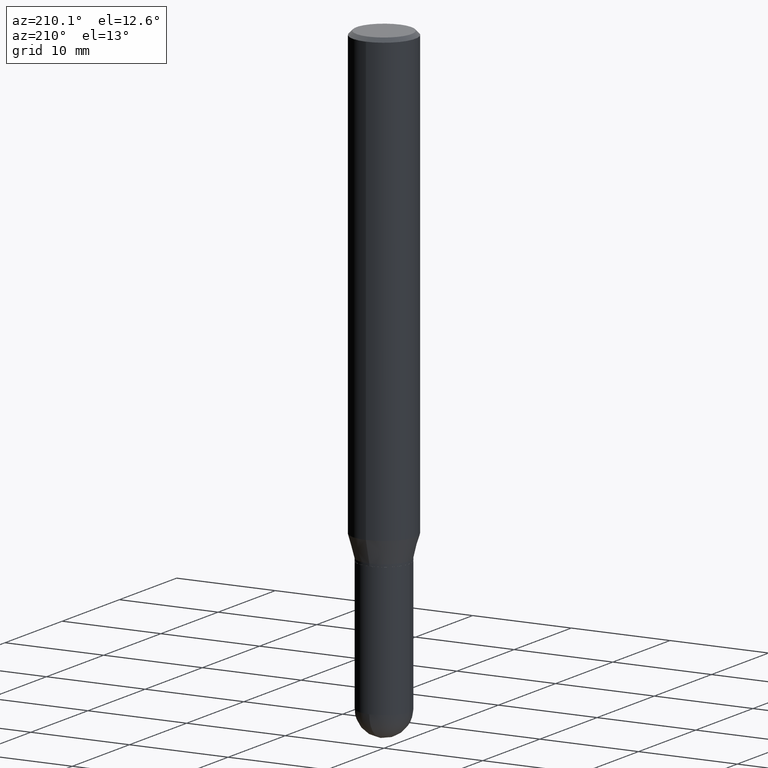
[diagram: clean part render]
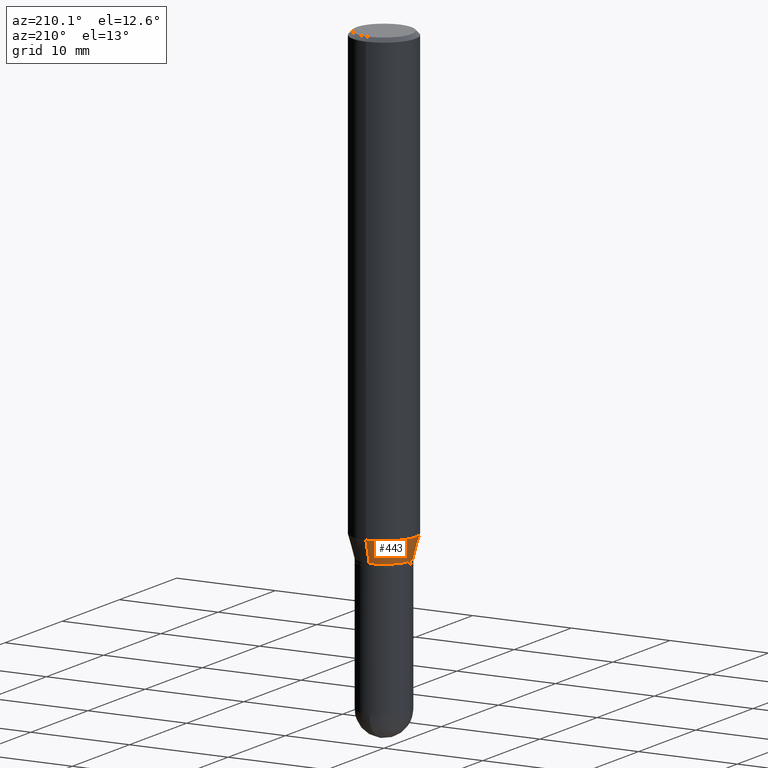
[diagram: same view with one face highlighted and labeled with its STEP entity id]
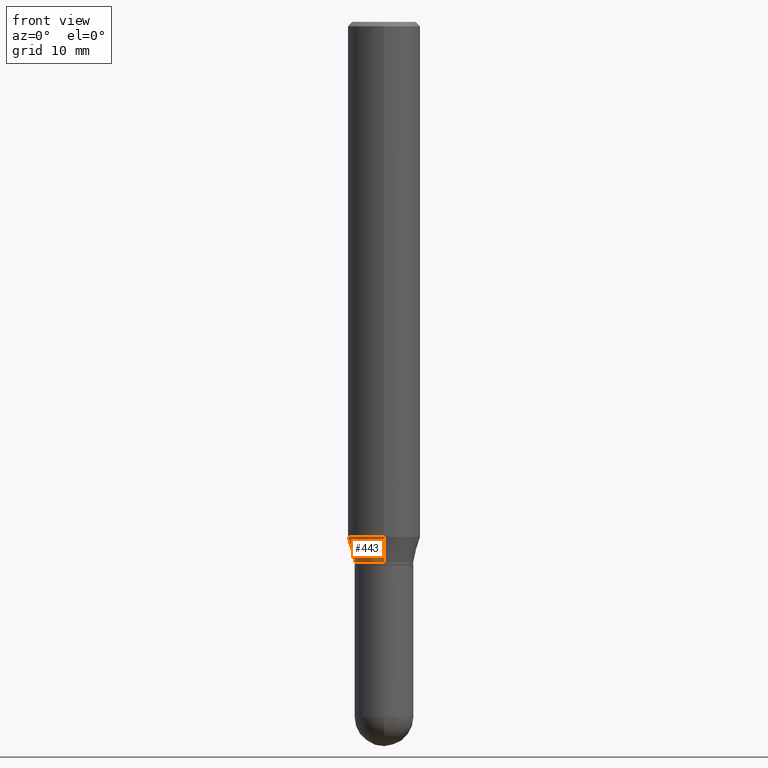
[diagram: same view with one face highlighted and labeled with its STEP entity id]
A machine part, auxiliary view. The second image highlights one B-rep face of the part: STEP entity #443.
A second angle (front view) of the same face is appended — the face is thin or edge-on in the first view.
In plain terms, the highlighted conical surface has half-angle 15 deg.
Its self-contained STEP definition (entity closure, byte-faithful):
#8 = VECTOR ( 'NONE', #18, 39.37007874015748143 ) ;
#18 = DIRECTION ( 'NONE',  ( 1.839019923739600710E-15, 0.2588190451025250138, 0.9659258262890670910 ) ) ;
#21 = LINE ( 'NONE', #496, #8 ) ;
#25 = DIRECTION ( 'NONE',  ( -2.445484535067431049E-29, 3.491458814188467583E-15, 1.000000000000000000 ) ) ;
#29 = CARTESIAN_POINT ( 'NONE',  ( 4.560828657900758226E-29, -6.511570688461491770E-15, -1.864999999999999991 ) ) ;
#41 = VERTEX_POINT ( 'NONE', #80 ) ;
#45 = VERTEX_POINT ( 'NONE', #238 ) ;
#49 = DIRECTION ( 'NONE',  ( -2.445484535067431049E-29, 3.491458814188467583E-15, 1.000000000000000000 ) ) ;
#63 = VECTOR ( 'NONE', #478, 39.37007874015748143 ) ;
#72 = DIRECTION ( 'NONE',  ( -6.982962677686266711E-15, -1.000000000000000000, 2.690150658458161914E-15 ) ) ;
#74 = DIRECTION ( 'NONE',  ( -6.982962677686266711E-15, -1.000000000000000000, 2.690150658458161914E-15 ) ) ;
#79 = EDGE_CURVE ( 'NONE', #278, #45, #174, .T. ) ;
#80 = CARTESIAN_POINT ( 'NONE',  ( -7.091198599189946337E-16, -0.1015500000000064962, -1.864999999999999547 ) ) ;
#95 = CARTESIAN_POINT ( 'NONE',  ( 8.048672839322978639E-16, 0.1015499999999934788, -1.865000000000000213 ) ) ;
#103 = ORIENTED_EDGE ( 'NONE', *, *, #454, .F. ) ;
#108 = CARTESIAN_POINT ( 'NONE',  ( 8.881784197001684225E-16, 0.1249999999999937828, -1.777483408562510636 ) ) ;
#121 = VERTEX_POINT ( 'NONE', #95 ) ;
#137 = CARTESIAN_POINT ( 'NONE',  ( 4.346808186978562239E-29, -6.206010113899336320E-15, -1.777483408562509970 ) ) ;
#140 = CIRCLE ( 'NONE', #510, 0.1015499999999999875 ) ;
#153 = FACE_OUTER_BOUND ( 'NONE', #475, .T. ) ;
#161 = ORIENTED_EDGE ( 'NONE', *, *, #79, .F. ) ;
#174 = CIRCLE ( 'NONE', #249, 0.1250000000000000000 ) ;
#238 = CARTESIAN_POINT ( 'NONE',  ( -8.728703347107399515E-16, -0.1250000000000062172, -1.777483408562509526 ) ) ;
#243 = CONICAL_SURFACE ( 'NONE', #456, 0.1015499999999999875, 0.2617993877991502960 ) ;
#245 = ORIENTED_EDGE ( 'NONE', *, *, #423, .T. ) ;
#249 = AXIS2_PLACEMENT_3D ( 'NONE', #137, #49, #477 ) ;
#273 = CARTESIAN_POINT ( 'NONE',  ( 4.560828657900758226E-29, -6.511570688461491770E-15, -1.864999999999999991 ) ) ;
#278 = VERTEX_POINT ( 'NONE', #108 ) ;
#351 = ORIENTED_EDGE ( 'NONE', *, *, #356, .T. ) ;
#356 = EDGE_CURVE ( 'NONE', #121, #41, #140, .T. ) ;
#364 = LINE ( 'NONE', #434, #63 ) ;
#421 = DIRECTION ( 'NONE',  ( -2.445484535067431049E-29, 3.491458814188467583E-15, 1.000000000000000000 ) ) ;
#423 = EDGE_CURVE ( 'NONE', #41, #45, #364, .T. ) ;
#434 = CARTESIAN_POINT ( 'NONE',  ( -7.091198599189946337E-16, -0.1015500000000064962, -1.864999999999999547 ) ) ;
#443 = ADVANCED_FACE ( 'NONE', ( #153 ), #243, .T. ) ;
#454 = EDGE_CURVE ( 'NONE', #121, #278, #21, .T. ) ;
#456 = AXIS2_PLACEMENT_3D ( 'NONE', #29, #25, #72 ) ;
#475 = EDGE_LOOP ( 'NONE', ( #103, #351, #245, #161 ) ) ;
#477 = DIRECTION ( 'NONE',  ( -6.982962677686265922E-15, -1.000000000000000000, 4.370956789862821150E-15 ) ) ;
#478 = DIRECTION ( 'NONE',  ( -1.807323732225330534E-15, -0.2588190451025182415, 0.9659258262890689783 ) ) ;
#496 = CARTESIAN_POINT ( 'NONE',  ( 7.215561481644272066E-16, 0.1015499999999934788, -1.865000000000000213 ) ) ;
#510 = AXIS2_PLACEMENT_3D ( 'NONE', #273, #421, #74 ) ;